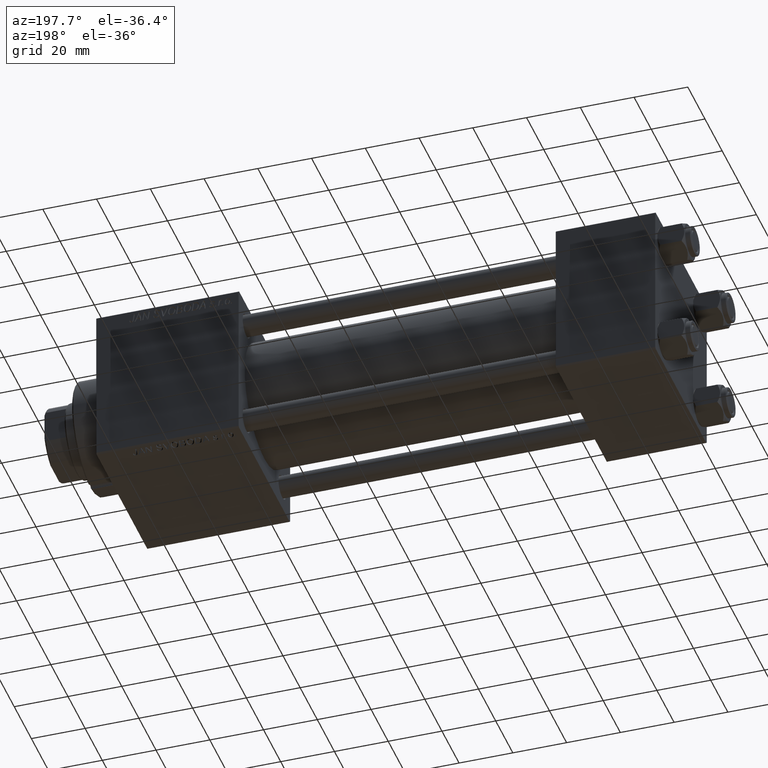
[diagram: clean part render]
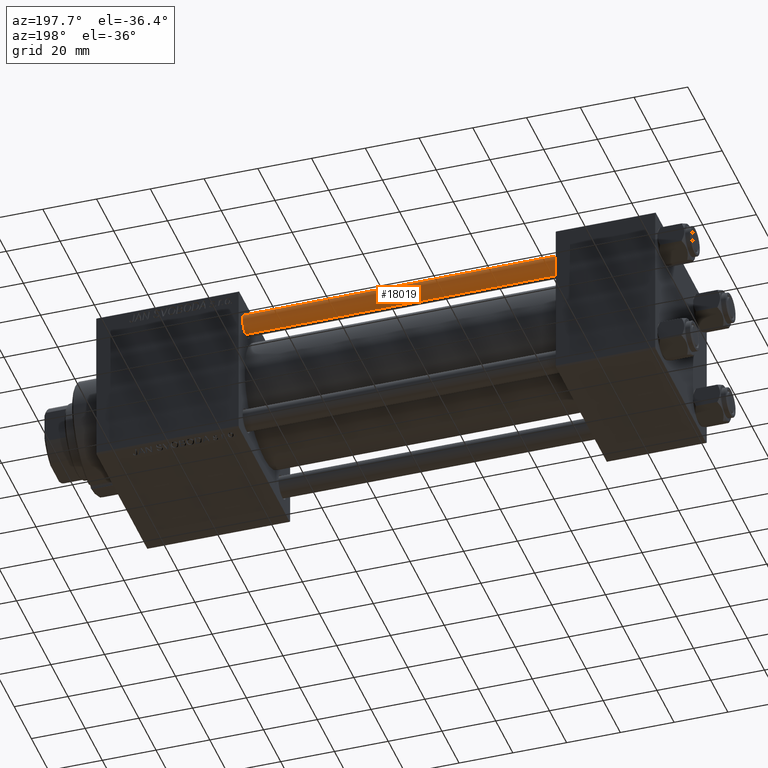
[diagram: same view with one face highlighted and labeled with its STEP entity id]
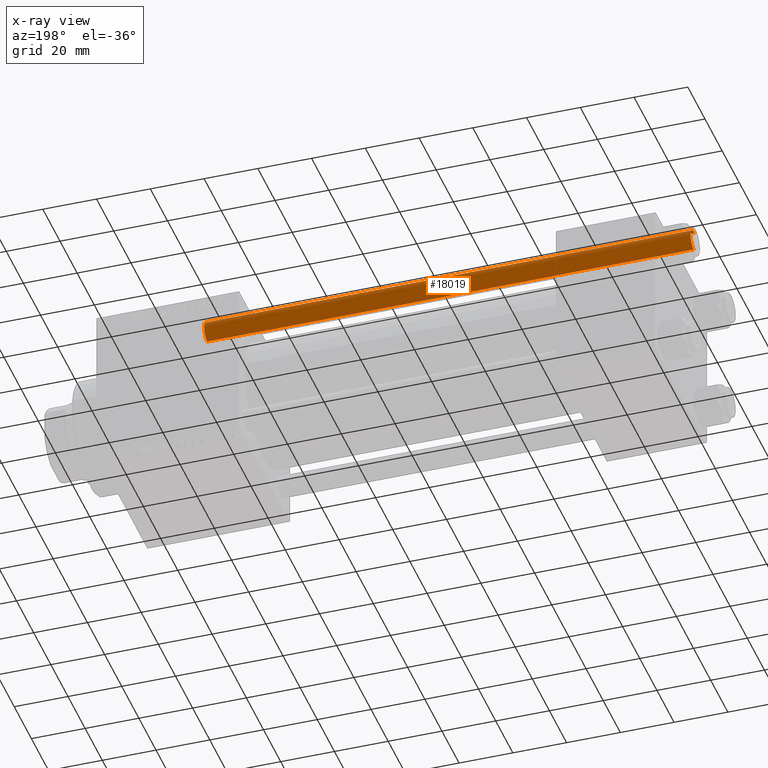
[diagram: x-ray of the same camera — body ghosted, the highlighted face saturated]
A machine part, auxiliary view. The second image highlights one B-rep face of the part: STEP entity #18019.
The next image is the same camera in x-ray: the body ghosted, the highlighted face saturated — about 0% of this face is hidden behind the body in this view.
In plain terms, the highlighted cylindrical surface (edge-blend (fillet) strip) has radius 4 mm, axis along (-1, 0, 0).
Its self-contained STEP definition (entity closure, byte-faithful):
#1591 = CIRCLE ( 'NONE', #33344, 4.000000000000000000 ) ;
#2998 = CYLINDRICAL_SURFACE ( 'NONE', #41067, 4.000000000000000000 ) ;
#5808 = EDGE_LOOP ( 'NONE', ( #45320, #21006, #12402, #7904 ) ) ;
#6051 = DIRECTION ( 'NONE',  ( 0.000000000000000000, 0.000000000000000000, -1.000000000000000000 ) ) ;
#7773 = DIRECTION ( 'NONE',  ( -0.000000000000000000, -0.000000000000000000, -1.000000000000000000 ) ) ;
#7786 = CARTESIAN_POINT ( 'NONE',  ( -4.000000000000000000, 0.000000000000000000, 182.0000000000000000 ) ) ;
#7904 = ORIENTED_EDGE ( 'NONE', *, *, #32081, .F. ) ;
#10725 = DIRECTION ( 'NONE',  ( -0.000000000000000000, -0.000000000000000000, 1.000000000000000000 ) ) ;
#12136 = VERTEX_POINT ( 'NONE', #44370 ) ;
#12219 = DIRECTION ( 'NONE',  ( -0.000000000000000000, -0.000000000000000000, -1.000000000000000000 ) ) ;
#12402 = ORIENTED_EDGE ( 'NONE', *, *, #31382, .T. ) ;
#12441 = CARTESIAN_POINT ( 'NONE',  ( 4.000000000000000000, 4.898587196589412829E-16, 181.5000000000000284 ) ) ;
#13067 = VERTEX_POINT ( 'NONE', #26851 ) ;
#18019 = ADVANCED_FACE ( 'NONE', ( #34032 ), #2998, .T. ) ;
#18892 = CARTESIAN_POINT ( 'NONE',  ( -4.000000000000000000, 0.000000000000000000, 0.4999999999999726885 ) ) ;
#19267 = LINE ( 'NONE', #7786, #47420 ) ;
#20027 = CARTESIAN_POINT ( 'NONE',  ( 4.000000000000000000, 4.898587196589412829E-16, 182.0000000000000000 ) ) ;
#21006 = ORIENTED_EDGE ( 'NONE', *, *, #28712, .T. ) ;
#23925 = LINE ( 'NONE', #20027, #31544 ) ;
#25281 = CIRCLE ( 'NONE', #31126, 4.000000000000000000 ) ;
#26616 = DIRECTION ( 'NONE',  ( 1.000000000000000000, 0.000000000000000000, 0.000000000000000000 ) ) ;
#26851 = CARTESIAN_POINT ( 'NONE',  ( -4.000000000000000000, 0.000000000000000000, 181.5000000000000284 ) ) ;
#28712 = EDGE_CURVE ( 'NONE', #43820, #12136, #23925, .T. ) ;
#31126 = AXIS2_PLACEMENT_3D ( 'NONE', #42023, #6051, #50395 ) ;
#31382 = EDGE_CURVE ( 'NONE', #12136, #39892, #1591, .T. ) ;
#31544 = VECTOR ( 'NONE', #7773, 1000.000000000000000 ) ;
#32081 = EDGE_CURVE ( 'NONE', #13067, #39892, #19267, .T. ) ;
#33344 = AXIS2_PLACEMENT_3D ( 'NONE', #34974, #10725, #26616 ) ;
#33787 = CARTESIAN_POINT ( 'NONE',  ( 0.000000000000000000, 0.000000000000000000, 182.0000000000000000 ) ) ;
#34032 = FACE_OUTER_BOUND ( 'NONE', #5808, .T. ) ;
#34974 = CARTESIAN_POINT ( 'NONE',  ( 0.000000000000000000, 0.000000000000000000, 0.4999999999999726885 ) ) ;
#39892 = VERTEX_POINT ( 'NONE', #18892 ) ;
#41067 = AXIS2_PLACEMENT_3D ( 'NONE', #33787, #49963, #46563 ) ;
#42023 = CARTESIAN_POINT ( 'NONE',  ( 0.000000000000000000, 0.000000000000000000, 181.5000000000000284 ) ) ;
#43820 = VERTEX_POINT ( 'NONE', #12441 ) ;
#44370 = CARTESIAN_POINT ( 'NONE',  ( 4.000000000000000000, 4.898587196589412829E-16, 0.4999999999999726885 ) ) ;
#45320 = ORIENTED_EDGE ( 'NONE', *, *, #47011, .T. ) ;
#46563 = DIRECTION ( 'NONE',  ( -1.000000000000000000, 0.000000000000000000, 0.000000000000000000 ) ) ;
#47011 = EDGE_CURVE ( 'NONE', #13067, #43820, #25281, .T. ) ;
#47420 = VECTOR ( 'NONE', #12219, 1000.000000000000000 ) ;
#49963 = DIRECTION ( 'NONE',  ( -0.000000000000000000, -0.000000000000000000, -1.000000000000000000 ) ) ;
#50395 = DIRECTION ( 'NONE',  ( 1.000000000000000000, 0.000000000000000000, 0.000000000000000000 ) ) ;